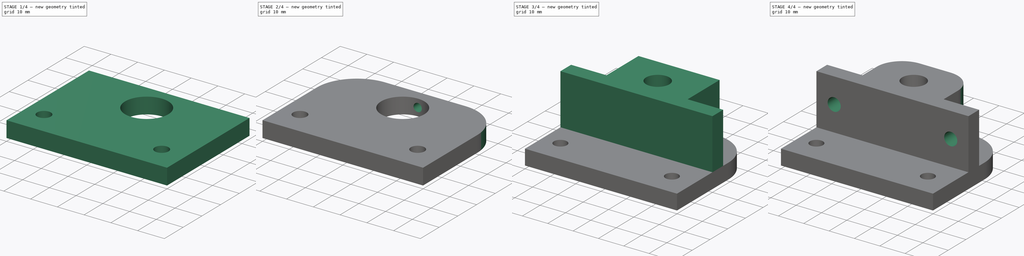
[diagram: build sequence overview — one tinted view per stage of 4, left to right]
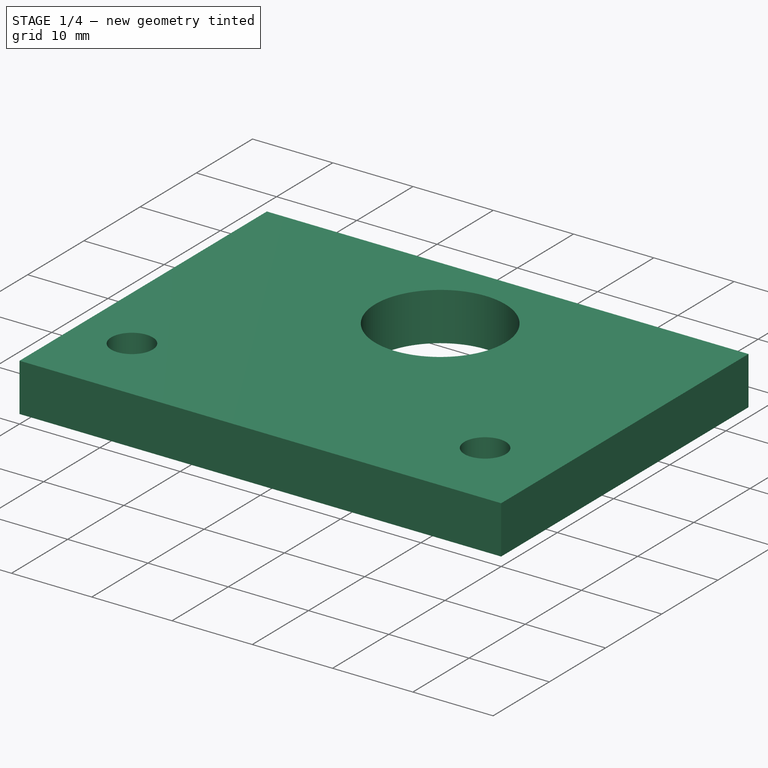
[diagram: stage 1 of 4 — iso view after this stage's code; geometry added in this stage tinted green]
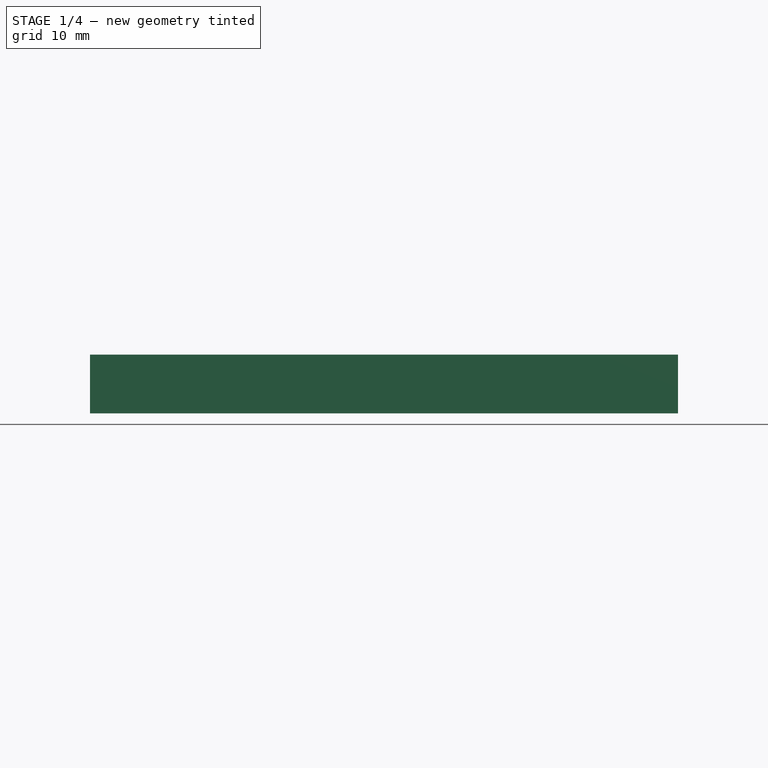
[diagram: stage 1 of 4 — front view after this stage's code; geometry added in this stage tinted green]
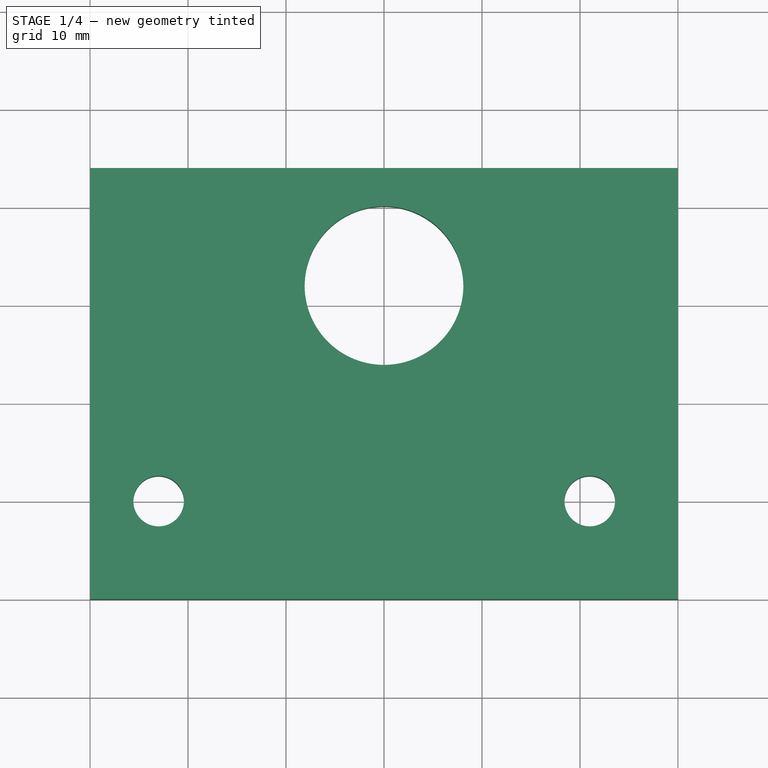
[diagram: stage 1 of 4 — top view after this stage's code; geometry added in this stage tinted green]
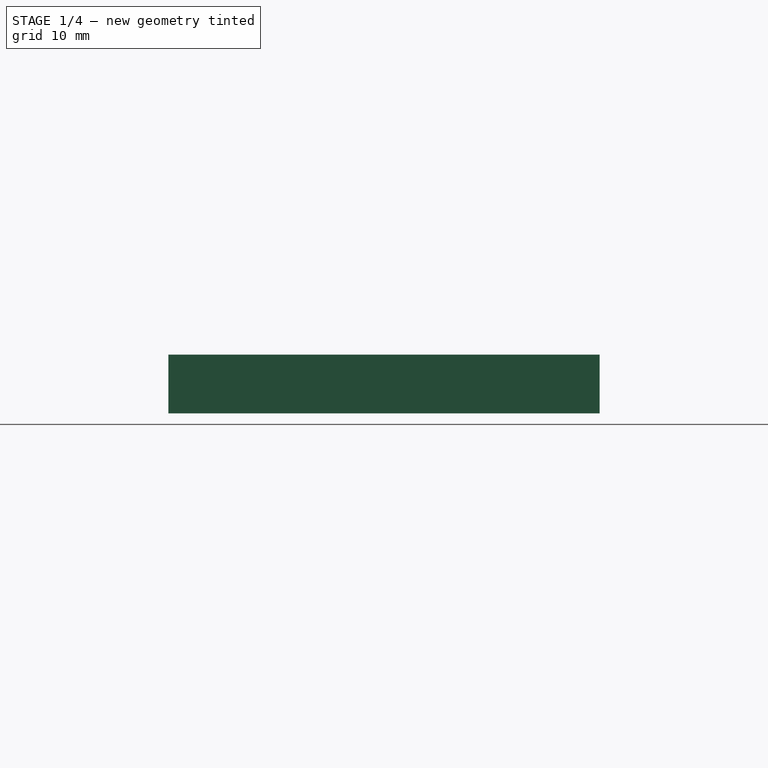
[diagram: stage 1 of 4 — right view after this stage's code; geometry added in this stage tinted green]
FCSTD DOCUMENT  (FreeCAD 0.16R6706 (Git))
Label: z-mounts
License: All rights reserved
LicenseURL: http://en.wikipedia.org/wiki/All_rights_reserved
objects: Sketcher::SketchObject×6, PartDesign::Pocket×6, PartDesign::Fillet×4, Part::Box×2
note: 24 computed .brp shape members not serialized (recipe doc carries the construction recipe); baked Part::Feature solids carry a one-line shape summary decoded from their .brp

FEATURE [Part::Box] Box  label="Cube"
  Height = 6
  Length = 60
  Width = 44
FEATURE [Sketcher::SketchObject] Sketch
  Placement = pos=(0,20,6) rot=(1,0,0;3.14159rad)
  Support = -> Box001 [Face5]
  sketch-geometry (1):
    g0: Circle CenterX=30 CenterY=-12 CenterZ=0 NormalX=0 NormalY=0 NormalZ=1 Radius=4.6
  constraints (3):
    c: DistanceX(g-2,g0) = 30
    c: DistanceY(g-1,g0) = -12
    c: Radius(g0) = 4.6
FEATURE [Sketcher::SketchObject] Sketch001
  Placement = pos=(0,0,0) rot=(1,0,0;3.14159rad)
  Support = -> Box [Face5]
  sketch-geometry (1):
    g0: Circle CenterX=30 CenterY=-32 CenterZ=0 NormalX=0 NormalY=0 NormalZ=1 Radius=8.1
  constraints (3):
    c: DistanceX(g-2,g0) = 30
    c: DistanceY(g-1,g0) = -32
    c: Radius(g0) = 8.1
FEATURE [PartDesign::Pocket] Pocket001
  Length = 9
  Sketch = -> Sketch001
  Type = 0
FEATURE [Sketcher::SketchObject] Sketch004
  Placement = pos=(0,0,6) rot=(0,0,1;0rad)
  Support = -> Pocket001 [Face3]
  sketch-geometry (2):
    g0: Circle CenterX=7 CenterY=10 CenterZ=0 NormalX=0 NormalY=0 NormalZ=1 Radius=2.58
    g1: Circle CenterX=51 CenterY=10 CenterZ=0 NormalX=0 NormalY=0 NormalZ=1 Radius=2.58
  constraints (6):
    c: Radius(g0) = 2.58
    c: Equal(g1,g0)
    c: DistanceX(g-2,g0) = 7
    c: Distance(g1,g0) = 44
    c: DistanceY(g-1,g0) = 10
    c: DistanceY(g-1,g1) = 10
FEATURE [PartDesign::Pocket] Pocket004
  Length = 6
  Sketch = -> Sketch004
  Type = 0
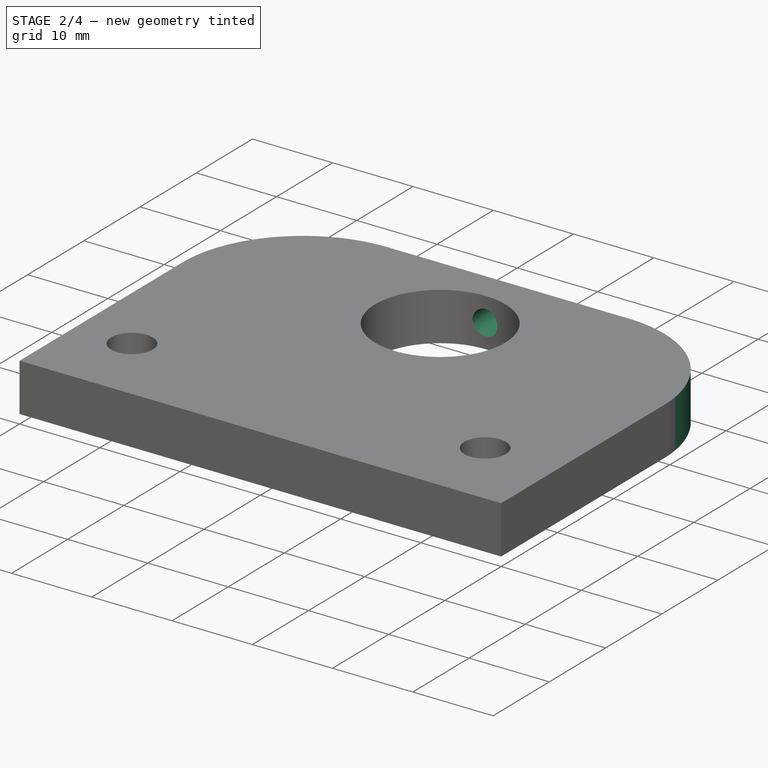
[diagram: stage 2 of 4 — iso view after this stage's code; geometry added in this stage tinted green]
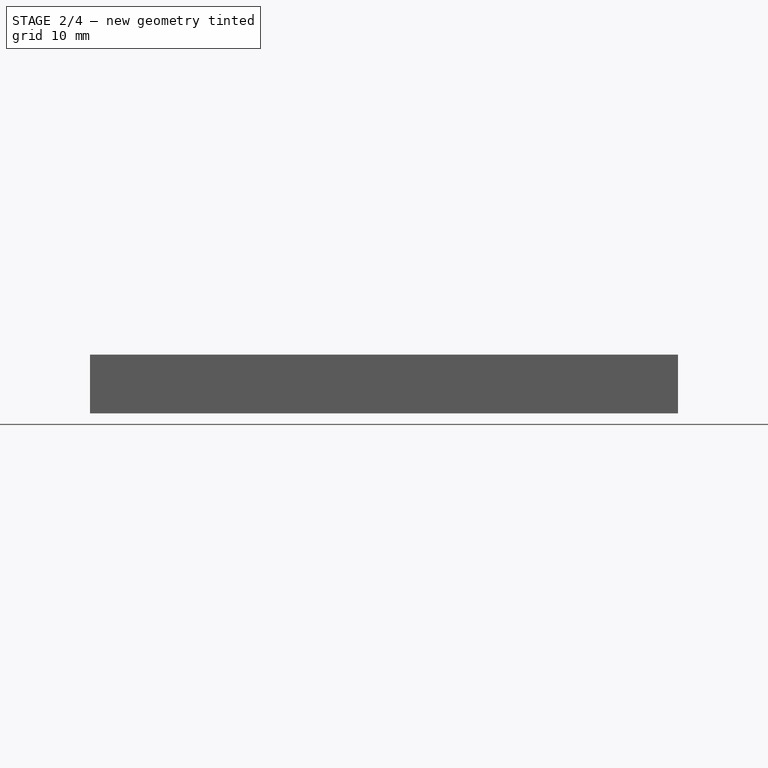
[diagram: stage 2 of 4 — front view after this stage's code; geometry added in this stage tinted green]
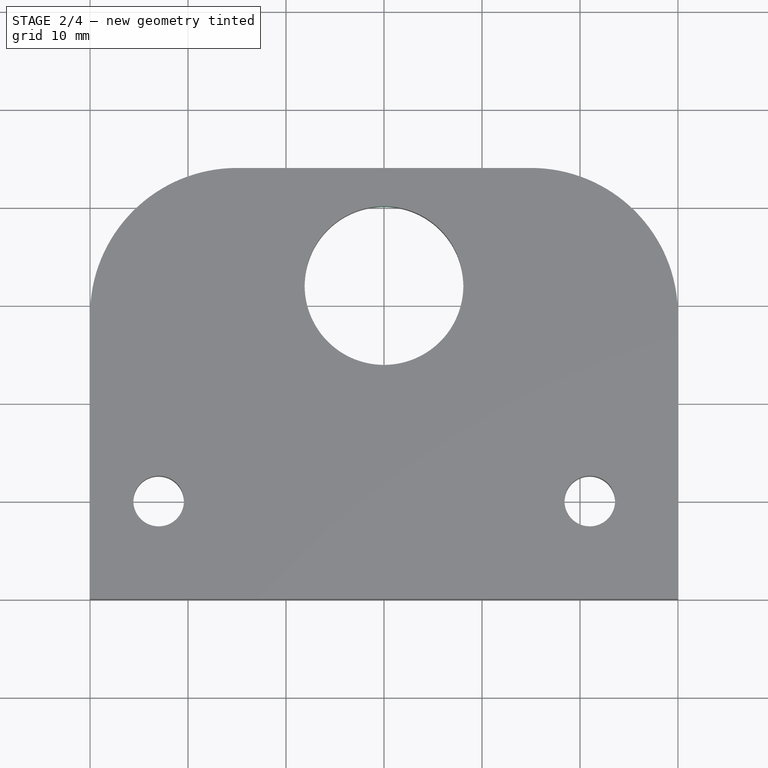
[diagram: stage 2 of 4 — top view after this stage's code; geometry added in this stage tinted green]
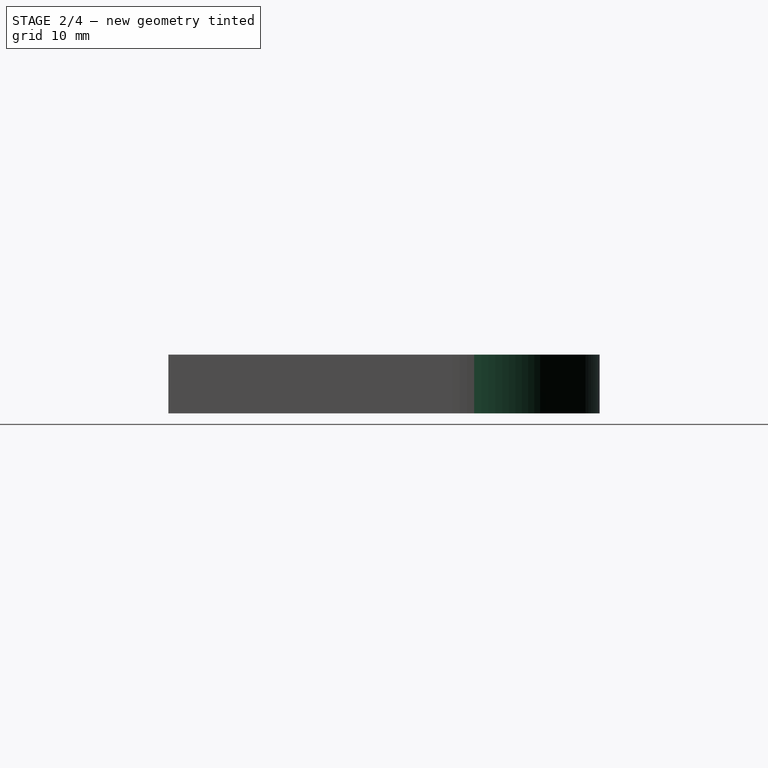
[diagram: stage 2 of 4 — right view after this stage's code; geometry added in this stage tinted green]
FEATURE [Sketcher::SketchObject] Sketch005
  Placement = pos=(0,44,0) rot=(0,0.707107,0.707107;3.14159rad)
  Support = -> Pocket004 [Face4]
  sketch-geometry (1):
    g0: Circle CenterX=-30 CenterY=3 CenterZ=0 NormalX=0 NormalY=0 NormalZ=1 Radius=1.54
  constraints (3):
    c: DistanceY(g-1,g0) = 3
    c: DistanceX(g-2,g0) = -30
    c: Radius(g0) = 1.54
FEATURE [PartDesign::Pocket] Pocket005
  Length = 5
  Sketch = -> Sketch005
  Type = 0
FEATURE [PartDesign::Fillet] Fillet002
  Base = -> Pocket005 [Edge14]
  Radius = 15
FEATURE [PartDesign::Fillet] Fillet003
  Base = -> Fillet002 [Edge11]
  Radius = 15
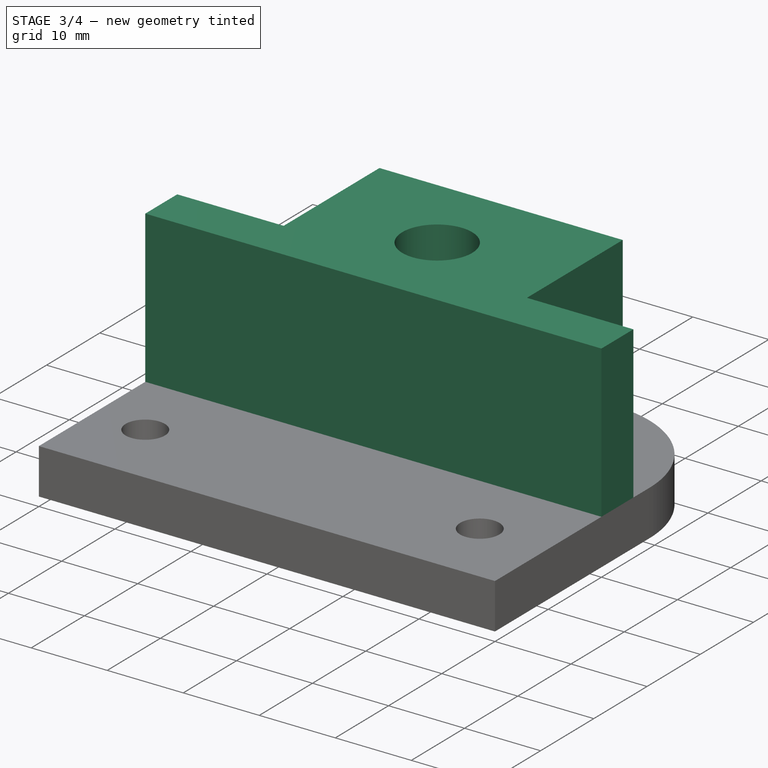
[diagram: stage 3 of 4 — iso view after this stage's code; geometry added in this stage tinted green]
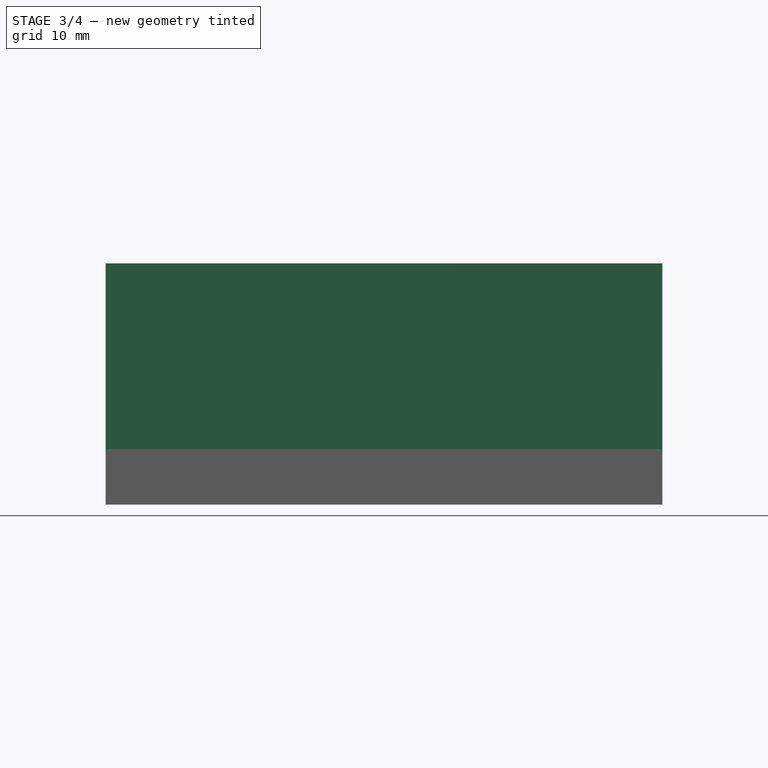
[diagram: stage 3 of 4 — front view after this stage's code; geometry added in this stage tinted green]
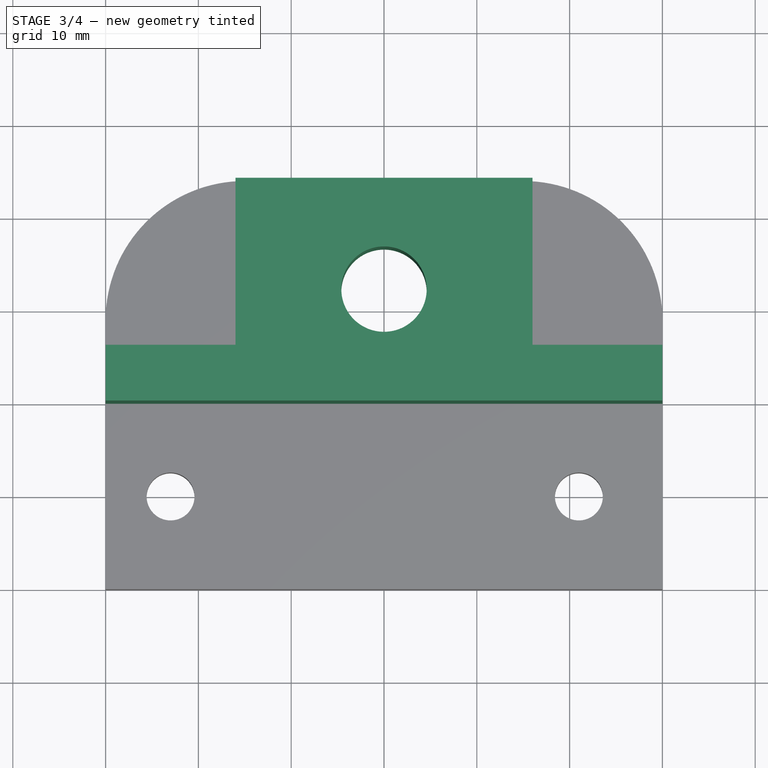
[diagram: stage 3 of 4 — top view after this stage's code; geometry added in this stage tinted green]
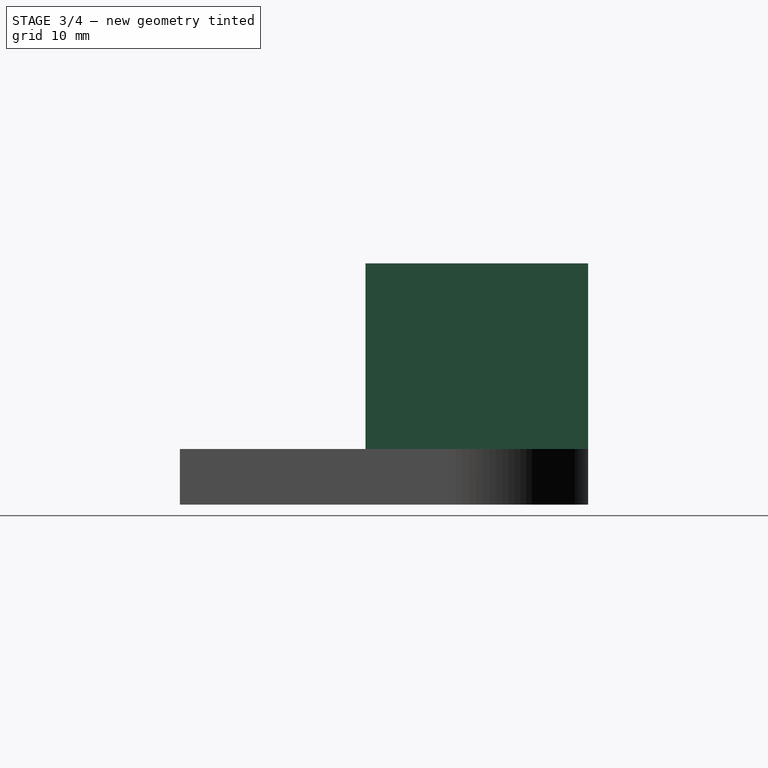
[diagram: stage 3 of 4 — right view after this stage's code; geometry added in this stage tinted green]
FEATURE [Part::Box] Box001  label="Cube001"
  Height = 20
  Length = 60
  Placement = pos=(0,20,6) rot=(0,0,1;0rad)
  Width = 24
FEATURE [PartDesign::Pocket] Pocket
  Length = 5
  Placement = pos=(0,20,6) rot=(0,0,1;0rad)
  Sketch = -> Sketch
  Type = 1
FEATURE [Sketcher::SketchObject] Sketch002
  Placement = pos=(0,44,6) rot=(0,0.707107,0.707107;3.14159rad)
  Support = -> Pocket [Face4]
  sketch-geometry (8):
    g0: LineSegment StartX=-60 StartY=20 StartZ=0 EndX=-46 EndY=20 EndZ=0
    g1: LineSegment StartX=-46 StartY=20 StartZ=0 EndX=-46 EndY=0 EndZ=0
    g2: LineSegment StartX=-46 StartY=0 StartZ=0 EndX=-60 EndY=0 EndZ=0
    g3: LineSegment StartX=-60 StartY=0 StartZ=0 EndX=-60 EndY=20 EndZ=0
    g4: LineSegment StartX=-14 StartY=20 StartZ=0 EndX=0 EndY=20 EndZ=0
    g5: LineSegment StartX=0 StartY=20 StartZ=0 EndX=0 EndY=0 EndZ=0
    g6: LineSegment StartX=0 StartY=0 StartZ=0 EndX=-14 EndY=0 EndZ=0
    g7: LineSegment StartX=-14 StartY=0 StartZ=0 EndX=-14 EndY=20 EndZ=0
  constraints (24):
    c: Coincident(g0,g1)
    c: Coincident(g1,g2)
    c: Coincident(g2,g3)
    c: Coincident(g3,g0)
    c: Horizontal(g0)
    c: Horizontal(g2)
    c: Vertical(g1)
    c: Vertical(g3)
    c: Coincident(g4,g5)
    c: Coincident(g5,g6)
    c: Coincident(g6,g7)
    c: Coincident(g7,g4)
    c: Horizontal(g4)
    c: Horizontal(g6)
    c: Vertical(g5)
    c: Vertical(g7)
    c: Distance(g5) = 20
    c: DistanceY(g-1,g6) = 0
    c: DistanceX(g-2,g4) = 0
    c: Distance(g4) = 14
    c: Distance(g0) = 14
    c: Distance(g1) = 20
    c: DistanceY(g-1,g1) = 0
    c: DistanceX(g-2,g0) = -46
FEATURE [PartDesign::Pocket] Pocket002
  Length = 18
  Placement = pos=(0,20,6) rot=(0,0,1;0rad)
  Sketch = -> Sketch002
  Type = 0
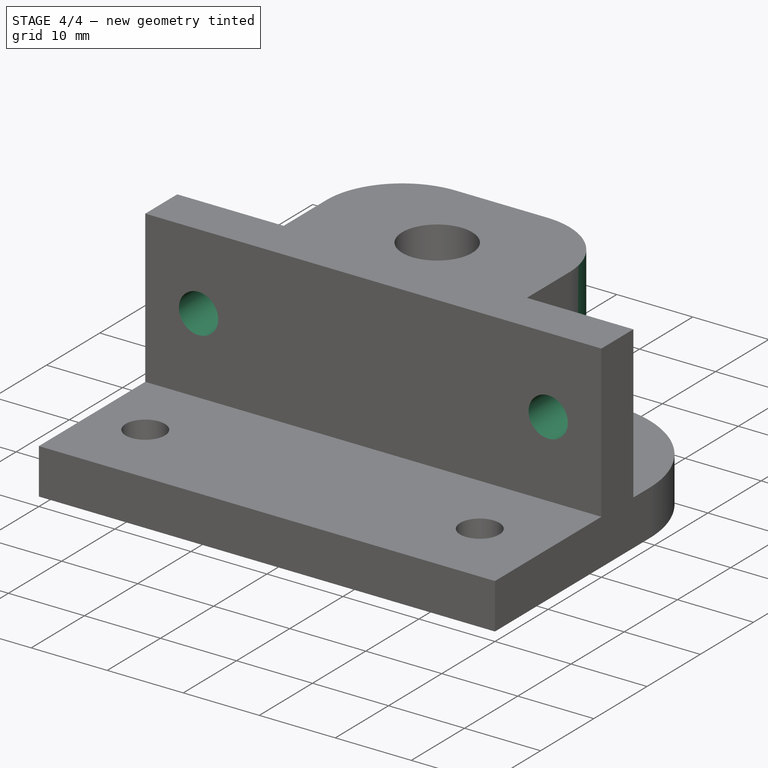
[diagram: stage 4 of 4 — iso view after this stage's code; geometry added in this stage tinted green]
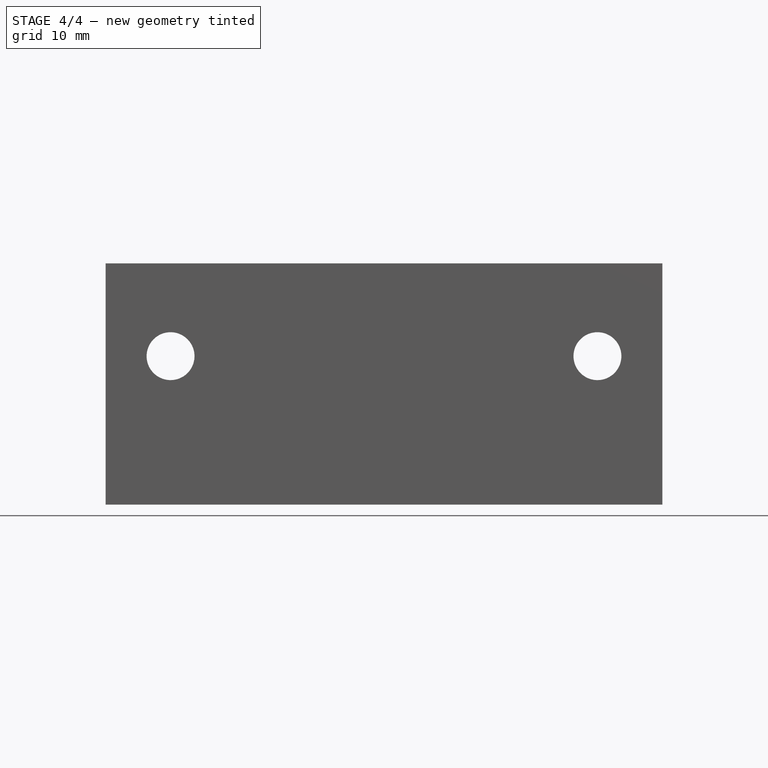
[diagram: stage 4 of 4 — front view after this stage's code; geometry added in this stage tinted green]
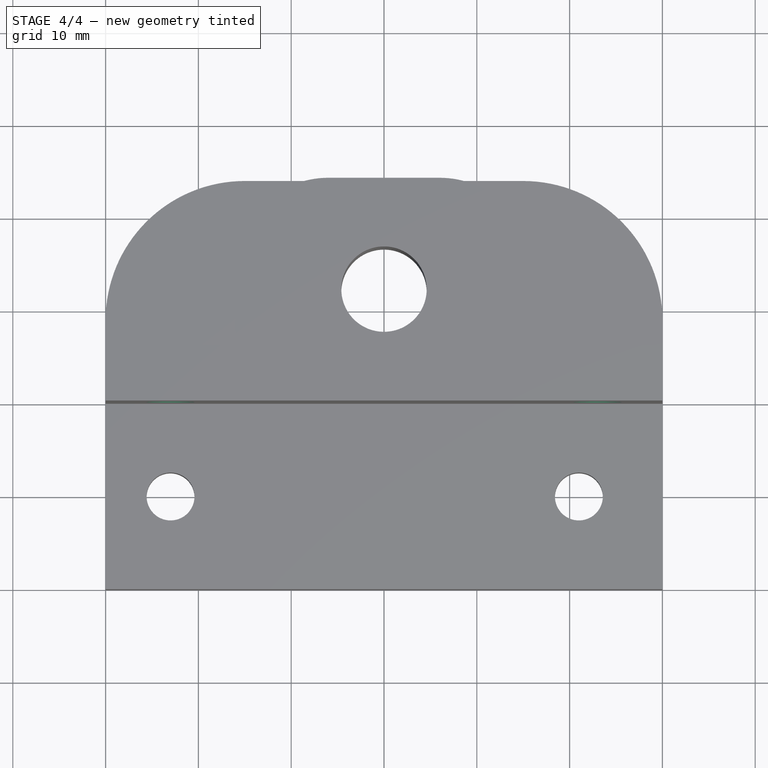
[diagram: stage 4 of 4 — top view after this stage's code; geometry added in this stage tinted green]
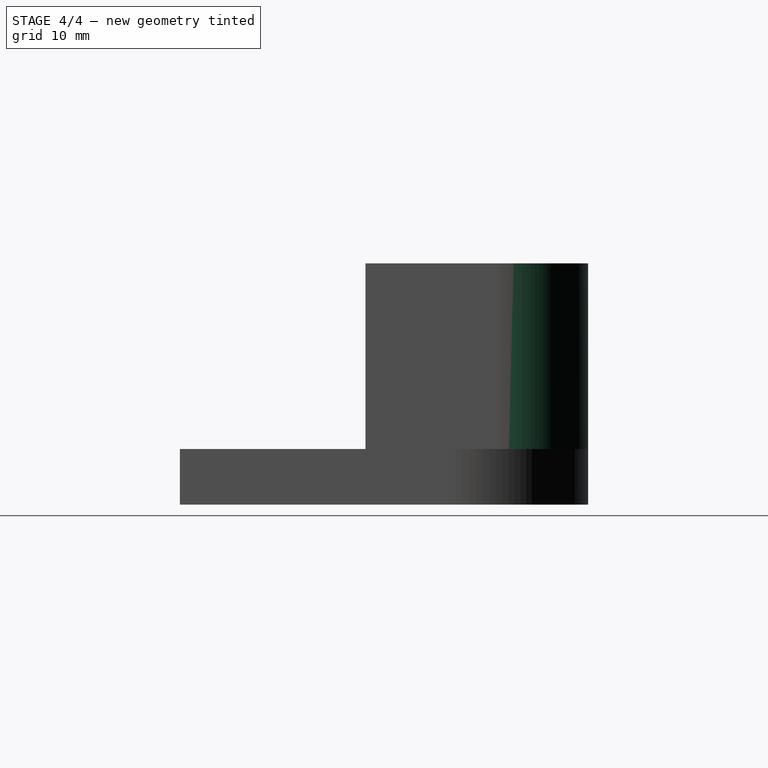
[diagram: stage 4 of 4 — right view after this stage's code; geometry added in this stage tinted green]
FEATURE [Sketcher::SketchObject] Sketch003
  Placement = pos=(0,20,6) rot=(1,0,0;1.5708rad)
  Support = -> Pocket002 [Face5]
  sketch-geometry (2):
    g0: Circle CenterX=7 CenterY=10 CenterZ=0 NormalX=0 NormalY=0 NormalZ=1 Radius=2.58
    g1: Circle CenterX=53 CenterY=10 CenterZ=0 NormalX=0 NormalY=0 NormalZ=1 Radius=2.58
  constraints (6):
    c: Radius(g0) = 2.58
    c: Equal(g0,g1)
    c: DistanceY(g-1,g0) = 10
    c: DistanceY(g-1,g1) = 10
    c: DistanceX(g-2,g0) = 7
    c: Distance(g0,g1) = 46
FEATURE [PartDesign::Pocket] Pocket003
  Length = 6
  Placement = pos=(0,20,6) rot=(0,0,1;0rad)
  Sketch = -> Sketch003
  Type = 0
FEATURE [PartDesign::Fillet] Fillet
  Base = -> Pocket003 [Edge26]
  Placement = pos=(0,20,6) rot=(0,0,1;0rad)
  Radius = 10
FEATURE [PartDesign::Fillet] Fillet001
  Base = -> Fillet [Edge20]
  Placement = pos=(0,20,6) rot=(0,0,1;0rad)
  Radius = 10
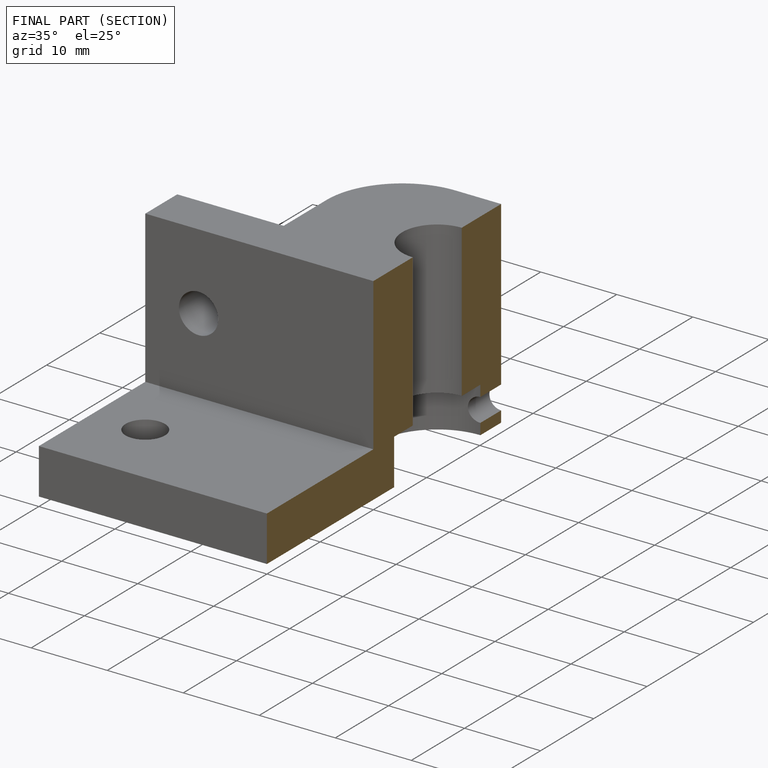
[diagram: finished part — half-section view (interior)]
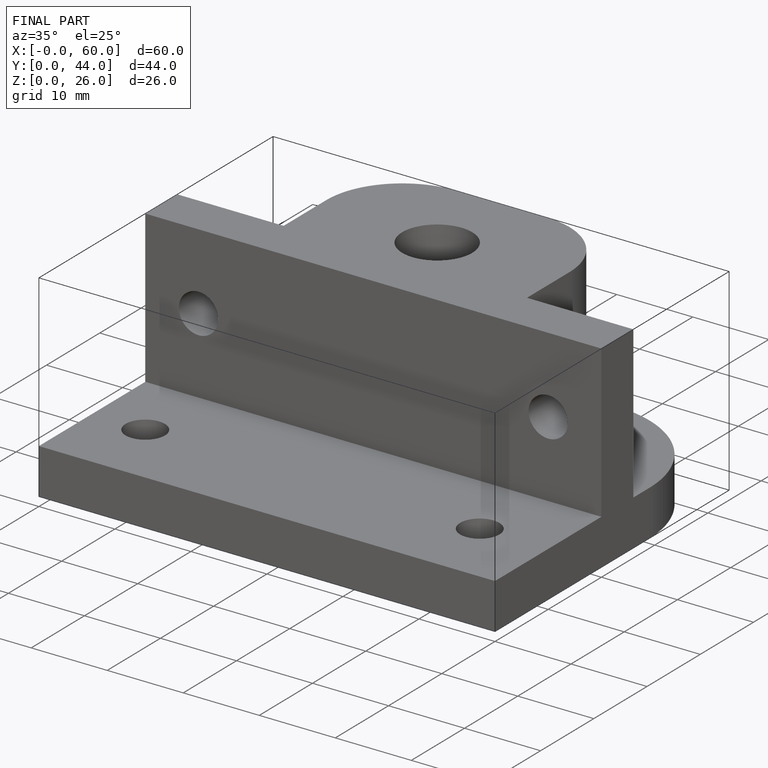
[diagram: finished part — iso view with bounding-box wireframe]
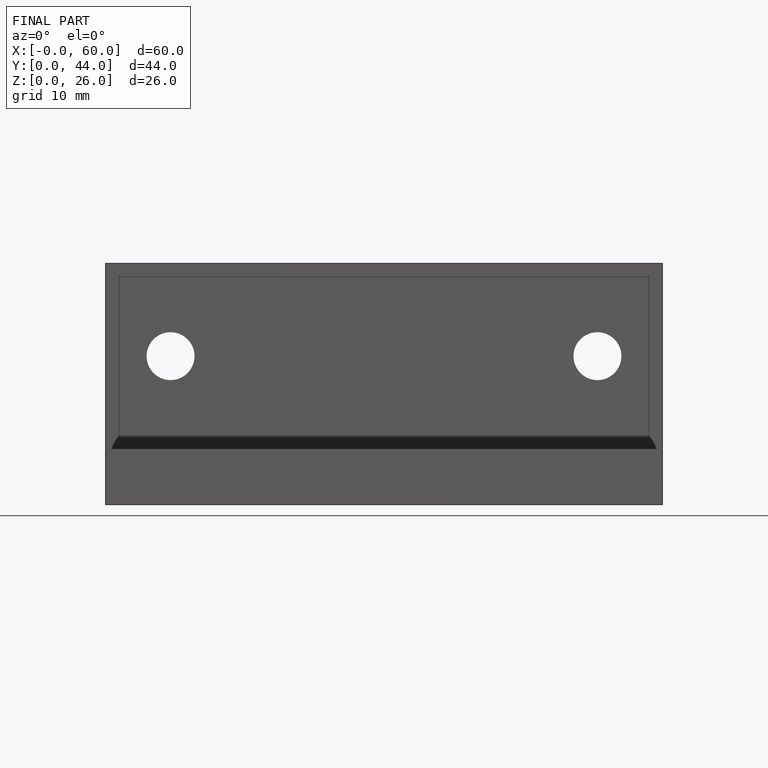
[diagram: finished part — front view with bounding-box wireframe]
